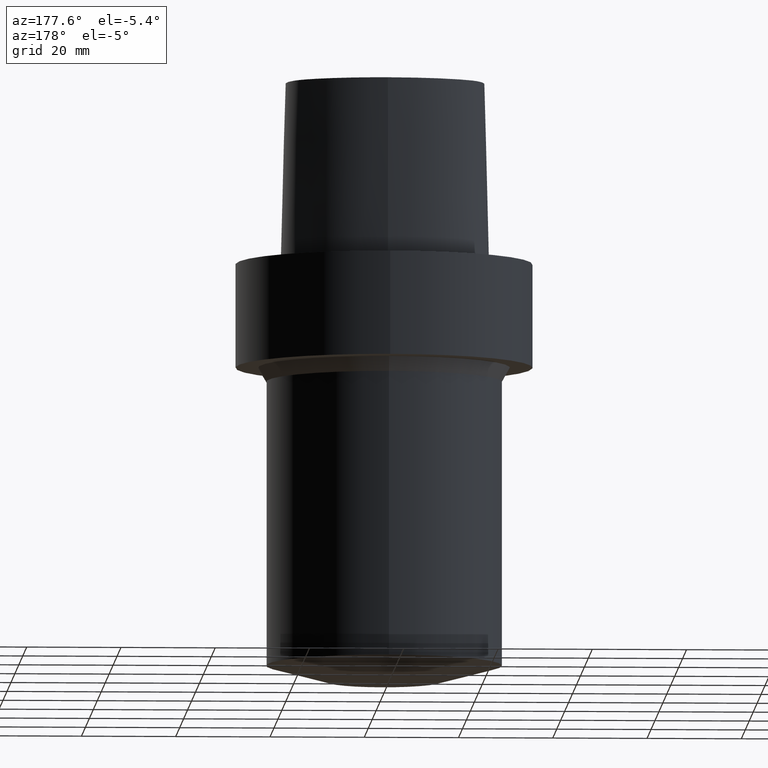
[diagram: clean part render]
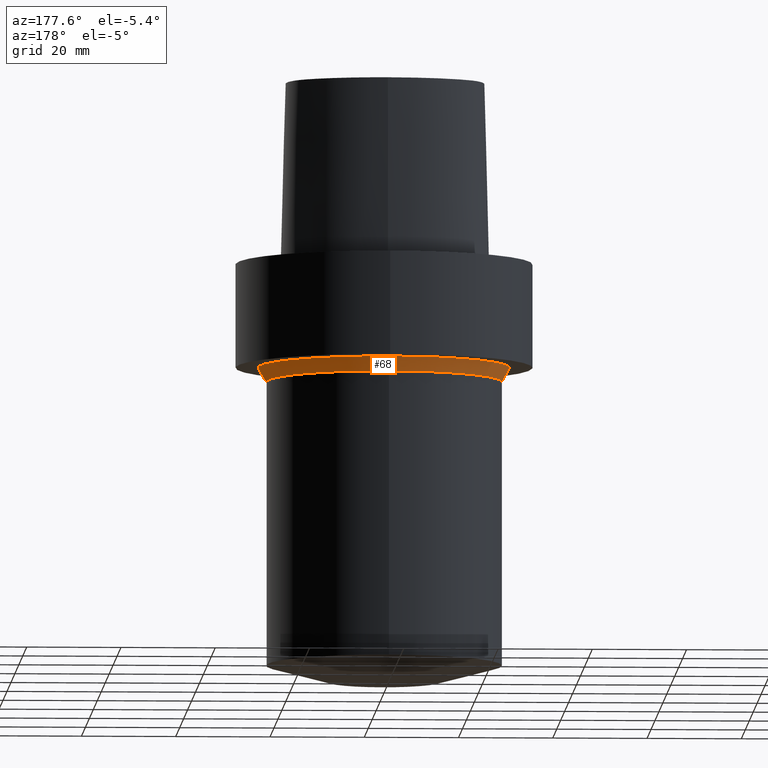
[diagram: same view with one face highlighted and labeled with its STEP entity id]
A machine part, auxiliary view. The second image highlights one B-rep face of the part: STEP entity #68.
In plain terms, the highlighted conical surface has half-angle 30 deg.
Its self-contained STEP definition (entity closure, byte-faithful):
#60=EDGE_CURVE('Unnamed[1]',#146,#146,#147,.T.);
#68=ADVANCED_FACE('Unnamed[1]',(#158,#159),#160,.T.);
#77=EDGE_CURVE('Unnamed[1]',#172,#172,#173,.T.);
#146=VERTEX_POINT('',#338);
#147=CIRCLE('',#339,24.9999999998985);
#158=FACE_BOUND('',#353,.T.);
#159=FACE_BOUND('',#354,.T.);
#160=CONICAL_SURFACE('',#355,25.8660254036023,0.523598775591873);
#172=VERTEX_POINT('',#402);
#173=CIRCLE('',#403,26.7320508073061);
#338=CARTESIAN_POINT('',(1.53080849891982E-015,24.9999999998985,-24.9999999997653));
#339=AXIS2_PLACEMENT_3D('',#561,#562,#563);
#353=EDGE_LOOP('',(#574));
#354=EDGE_LOOP('',(#575));
#355=AXIS2_PLACEMENT_3D('',#576,#577,#578);
#402=CARTESIAN_POINT('',(1.34711147906209E-015,26.7320508073061,-22.0));
#403=AXIS2_PLACEMENT_3D('',#584,#585,#586);
#561=CARTESIAN_POINT('',(1.53080849891982E-015,3.06161699783964E-015,-24.9999999997653));
#562=DIRECTION('',(6.12323399573677E-017,1.22464679914735E-016,-1.0));
#563=DIRECTION('',(-1.23259516440783E-032,1.0,1.22464679914735E-016));
#574=ORIENTED_EDGE('',*,*,#60,.F.);
#575=ORIENTED_EDGE('',*,*,#77,.T.);
#576=CARTESIAN_POINT('',(1.43895998899096E-015,2.87791997798191E-015,-23.4999999998827));
#577=DIRECTION('',(-6.12323399573677E-017,-1.22464679914735E-016,1.0));
#578=DIRECTION('',(-1.23259516440783E-032,1.0,1.22464679914735E-016));
#584=CARTESIAN_POINT('',(1.34711147906209E-015,2.69422295812418E-015,-22.0));
#585=DIRECTION('',(6.12323399573677E-017,1.22464679914735E-016,-1.0));
#586=DIRECTION('',(-1.23259516440783E-032,1.0,1.22464679914735E-016));